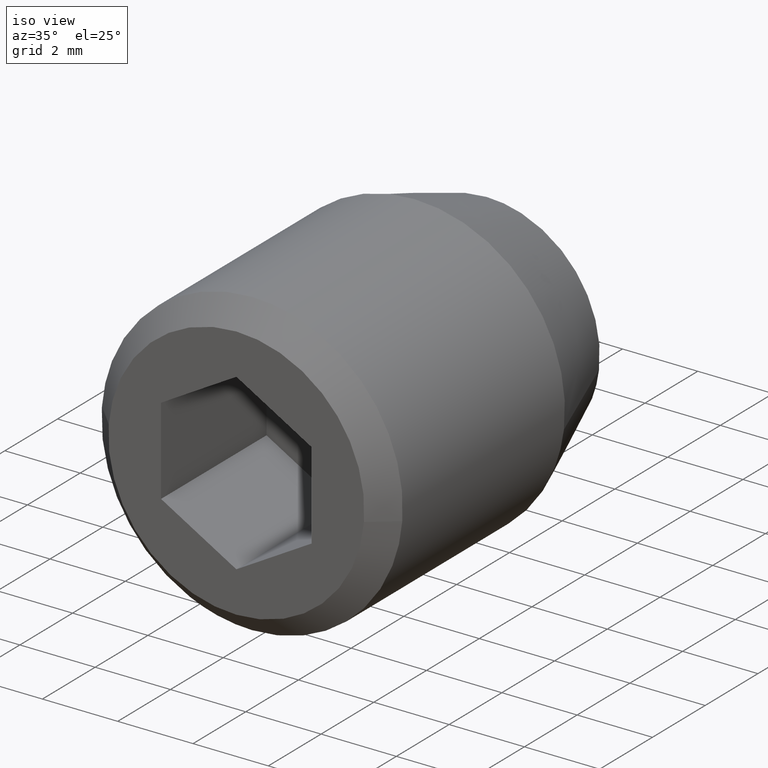
[diagram: clean part render]
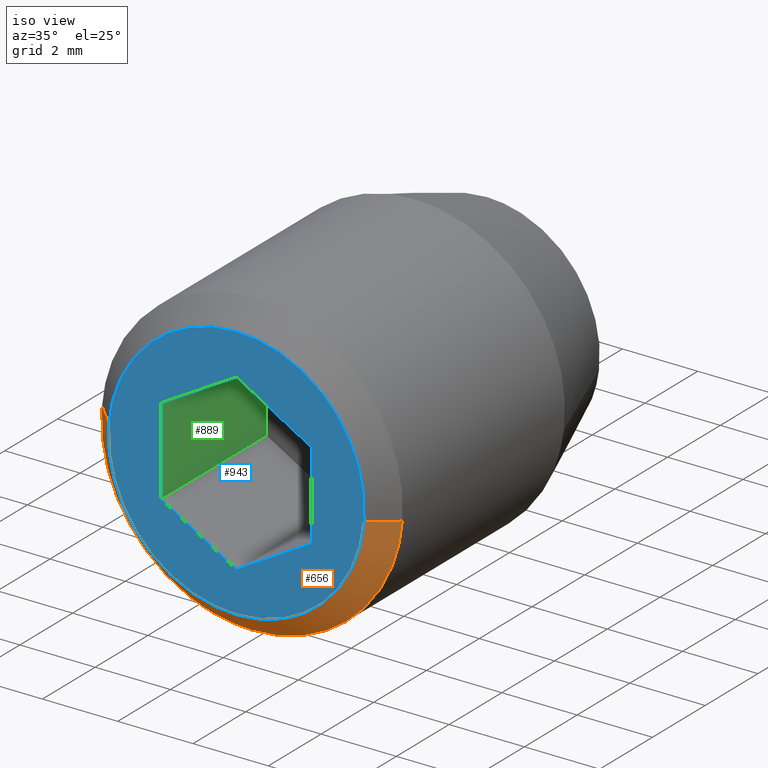
[diagram: same view with three faces highlighted in distinct colors, each labeled with its STEP entity id]
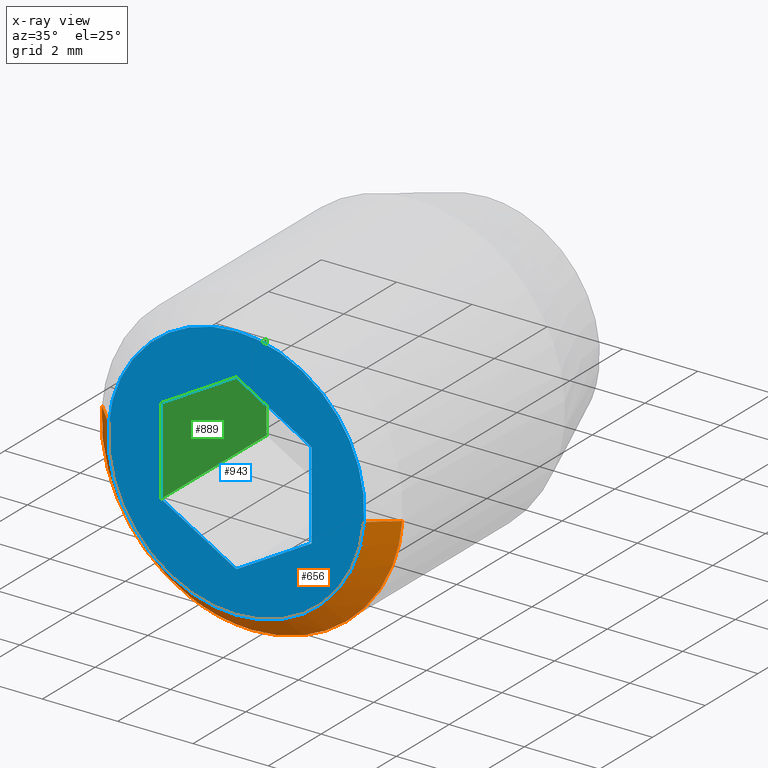
[diagram: x-ray of the same camera — body ghosted, the three highlighted faces saturated]
A machine part, iso view with three faces highlighted in distinct colors.
The next image is the same camera in x-ray (body ghosted, the three faces saturated) — at least one of them is partly hidden behind the body in this view.
Their STEP definitions:

[orange] entity #656 — the highlighted face is a freeform B-spline surface patch.
#256=CARTESIAN_POINT('',(-0.937293227097118,-8.899999999999999,-3.888634902692239));
#257=VERTEX_POINT('',#256);
#258=CARTESIAN_POINT('',(0.0,-8.900000000000000,-4.000000000000001));
#259=VERTEX_POINT('',#258);
#260=CARTESIAN_POINT('',(-0.937293227097118,-8.899999999999997,-3.888634902692239));
#261=CARTESIAN_POINT('',(-0.475262571361877,-8.900000000000000,-4.000000000000001));
#262=CARTESIAN_POINT('',(0.0,-8.900000000000000,-4.000000000000001));
#270=(BOUNDED_CURVE()B_SPLINE_CURVE(2,(#260,#261,#262),.UNSPECIFIED.,.F.,.U.)B_SPLINE_CURVE_WITH_KNOTS((3,3),(0.959962761347850,1.0),.UNSPECIFIED.)CURVE()GEOMETRIC_REPRESENTATION_ITEM()RATIONAL_B_SPLINE_CURVE((0.921210981979179,0.953093457195077,1.0))REPRESENTATION_ITEM(''));
#271=EDGE_CURVE('',#257,#259,#270,.T.);
#342=CARTESIAN_POINT('',(-3.992539213832878,-8.899999999999999,0.244193828764437));
#343=VERTEX_POINT('',#342);
#349=CARTESIAN_POINT('',(-3.987669081144080,-8.900000270182057,0.313836163995019));
#350=VERTEX_POINT('',#349);
#351=CARTESIAN_POINT('',(-3.987669081144081,-8.900000270182057,0.313836163995019));
#352=CARTESIAN_POINT('',(-3.990408181555453,-8.900000000000004,0.279035992859209));
#353=CARTESIAN_POINT('',(-3.992539213832878,-8.899999999999999,0.244193828764437));
#361=(BOUNDED_CURVE()B_SPLINE_CURVE(2,(#351,#352,#353),.UNSPECIFIED.,.F.,.U.)B_SPLINE_CURVE_WITH_KNOTS((3,3),(0.736331317632034,0.739332990711369),.UNSPECIFIED.)CURVE()GEOMETRIC_REPRESENTATION_ITEM()RATIONAL_B_SPLINE_CURVE((0.969723391647992,0.972855523488422,0.976072102688554))REPRESENTATION_ITEM(''));
#362=EDGE_CURVE('',#350,#343,#361,.T.);
#379=CARTESIAN_POINT('',(3.987669081144081,-8.900000270182055,-0.313836163995021));
#380=VERTEX_POINT('',#379);
#396=CARTESIAN_POINT('',(0.0,-8.900000000000000,-4.000000000000001));
#397=CARTESIAN_POINT('',(3.697562334434470,-8.900000000000000,-4.000000000000001));
#398=CARTESIAN_POINT('',(3.987669081144081,-8.900000270182055,-0.313836163995021));
#406=(BOUNDED_CURVE()B_SPLINE_CURVE(2,(#396,#397,#398),.UNSPECIFIED.,.F.,.U.)B_SPLINE_CURVE_WITH_KNOTS((3,3),(0.0,0.236331317632034),.UNSPECIFIED.)CURVE()GEOMETRIC_REPRESENTATION_ITEM()RATIONAL_B_SPLINE_CURVE((1.0,0.723120638689316,0.969723391647992))REPRESENTATION_ITEM(''));
#407=EDGE_CURVE('',#259,#380,#406,.T.);
#426=CARTESIAN_POINT('',(-3.992539213832878,-8.899999999999999,0.244193828764437));
#427=CARTESIAN_POINT('',(-4.0,-8.900000000000000,0.122210722895832));
#428=CARTESIAN_POINT('',(-4.0,-8.900000000000000,-6.735335E-016));
#429=CARTESIAN_POINT('',(-4.0,-8.900000000000000,-3.150418436847609));
#430=CARTESIAN_POINT('',(-0.937293227097118,-8.899999999999997,-3.888634902692239));
#438=(BOUNDED_CURVE()B_SPLINE_CURVE(2,(#426,#427,#428,#429,#430),.UNSPECIFIED.,.F.,.U.)B_SPLINE_CURVE_WITH_KNOTS((3,2,3),(0.739332990711369,0.750000000000000,0.959962761347850),.UNSPECIFIED.)CURVE()GEOMETRIC_REPRESENTATION_ITEM()RATIONAL_B_SPLINE_CURVE((0.976072102688554,0.987502821257359,1.0,0.754013323991470,0.921210981979179))REPRESENTATION_ITEM(''));
#439=EDGE_CURVE('',#343,#257,#438,.T.);
#588=CARTESIAN_POINT('',(3.374565174686613,-9.515000000000002,-0.265584039038756));
#589=CARTESIAN_POINT('',(3.108981135647858,-9.515000000000002,-3.640149213725368));
#590=CARTESIAN_POINT('',(-0.265584039038755,-9.515000000000002,-3.374565174686614));
#591=CARTESIAN_POINT('',(-3.640149213725368,-9.515000000000002,-3.108981135647858));
#592=CARTESIAN_POINT('',(-3.374565174686613,-9.515000000000002,0.265584039038755));
#593=CARTESIAN_POINT('',(4.002996938938661,-8.884624999999998,-0.315042691508199));
#594=CARTESIAN_POINT('',(3.687954247430463,-8.884624999999998,-4.318039630446859));
#595=CARTESIAN_POINT('',(-0.315042691508198,-8.884624999999998,-4.002996938938662));
#596=CARTESIAN_POINT('',(-4.318039630446859,-8.884624999999998,-3.687954247430463));
#597=CARTESIAN_POINT('',(-4.002996938938661,-8.884624999999998,0.315042691508197));
#605=(BOUNDED_SURFACE()B_SPLINE_SURFACE(2,1,((#588,#593),(#589,#594),(#590,#595),(#591,#596),(#592,#597)),.UNSPECIFIED.,.F.,.F.,.U.)B_SPLINE_SURFACE_WITH_KNOTS((3,2,3),(2,2),(0.0,6.652891132055469,13.305782264110940),(0.0,1.0),.UNSPECIFIED.)GEOMETRIC_REPRESENTATION_ITEM()RATIONAL_B_SPLINE_SURFACE(((1.0,1.0),(0.707106781186548,0.707106781186548),(1.0,1.0),(0.707106781186548,0.707106781186548),(1.0,1.0)))REPRESENTATION_ITEM('')SURFACE());
#606=CARTESIAN_POINT('',(0.0,-9.500000000000000,-3.400000000000001));
#607=VERTEX_POINT('',#606);
#608=CARTESIAN_POINT('',(3.389518593806453,-9.500000363099781,-0.266760628957499));
#609=VERTEX_POINT('',#608);
#610=CARTESIAN_POINT('',(0.0,-9.500000000000000,-3.400000000000001));
#611=CARTESIAN_POINT('',(3.142928170233559,-9.500000000000000,-3.400000000000003));
#612=CARTESIAN_POINT('',(3.389518593806453,-9.500000363099781,-0.266760628957499));
#620=(BOUNDED_CURVE()B_SPLINE_CURVE(2,(#610,#611,#612),.UNSPECIFIED.,.F.,.U.)B_SPLINE_CURVE_WITH_KNOTS((3,3),(0.0,0.236331327743802),.UNSPECIFIED.)CURVE()GEOMETRIC_REPRESENTATION_ITEM()RATIONAL_B_SPLINE_CURVE((1.0,0.723120626842644,0.969723412750484))REPRESENTATION_ITEM(''));
#621=EDGE_CURVE('',#607,#609,#620,.T.);
#622=ORIENTED_EDGE('',*,*,#621,.F.);
#623=CARTESIAN_POINT('',(-3.389518593806453,-9.500000363099781,0.266760628957498));
#624=VERTEX_POINT('',#623);
#625=CARTESIAN_POINT('',(-3.389518593806453,-9.500000363099781,0.266760628957498));
#626=CARTESIAN_POINT('',(-3.400000000000000,-9.500000000000000,0.133586094553548));
#627=CARTESIAN_POINT('',(-3.400000000000000,-9.500000000000000,-6.735335E-016));
#628=CARTESIAN_POINT('',(-3.400000000000001,-9.500000000000000,-3.400000000000002));
#629=CARTESIAN_POINT('',(0.0,-9.500000000000000,-3.400000000000001));
#637=(BOUNDED_CURVE()B_SPLINE_CURVE(2,(#625,#626,#627,#628,#629),.UNSPECIFIED.,.F.,.U.)B_SPLINE_CURVE_WITH_KNOTS((3,2,3),(0.736331327743802,0.750000000000000,1.0),.UNSPECIFIED.)CURVE()GEOMETRIC_REPRESENTATION_ITEM()RATIONAL_B_SPLINE_CURVE((0.969723412750484,0.983986154343904,1.0,0.707106781186548,1.0))REPRESENTATION_ITEM(''));
#638=EDGE_CURVE('',#624,#607,#637,.T.);
#639=ORIENTED_EDGE('',*,*,#638,.F.);
#640=CARTESIAN_POINT('',(-3.389518593806453,-9.500000363099781,0.266760628957498));
#641=CARTESIAN_POINT('',(-3.987669081144080,-8.900000270182057,0.313836163995019));
#642=QUASI_UNIFORM_CURVE('',1,(#640,#641),.UNSPECIFIED.,.F.,.U.);
#643=EDGE_CURVE('',#624,#350,#642,.T.);
#644=ORIENTED_EDGE('',*,*,#643,.T.);
#645=ORIENTED_EDGE('',*,*,#362,.T.);
#646=ORIENTED_EDGE('',*,*,#439,.T.);
#647=ORIENTED_EDGE('',*,*,#271,.T.);
#648=ORIENTED_EDGE('',*,*,#407,.T.);
#649=CARTESIAN_POINT('',(3.389518593806453,-9.500000363099781,-0.266760628957499));
#650=CARTESIAN_POINT('',(3.987669081144081,-8.900000270182055,-0.313836163995021));
#651=QUASI_UNIFORM_CURVE('',1,(#649,#650),.UNSPECIFIED.,.F.,.U.);
#652=EDGE_CURVE('',#609,#380,#651,.T.);
#653=ORIENTED_EDGE('',*,*,#652,.F.);
#654=EDGE_LOOP('',(#622,#639,#644,#645,#646,#647,#648,#653));
#655=FACE_OUTER_BOUND('',#654,.T.);
#656=ADVANCED_FACE('',(#655),#605,.T.);

[blue] entity #943 — the highlighted face is a freeform B-spline surface patch.
#606=CARTESIAN_POINT('',(0.0,-9.500000000000000,-3.400000000000001));
#607=VERTEX_POINT('',#606);
#608=CARTESIAN_POINT('',(3.389518593806453,-9.500000363099781,-0.266760628957499));
#609=VERTEX_POINT('',#608);
#610=CARTESIAN_POINT('',(0.0,-9.500000000000000,-3.400000000000001));
#611=CARTESIAN_POINT('',(3.142928170233559,-9.500000000000000,-3.400000000000003));
#612=CARTESIAN_POINT('',(3.389518593806453,-9.500000363099781,-0.266760628957499));
#620=(BOUNDED_CURVE()B_SPLINE_CURVE(2,(#610,#611,#612),.UNSPECIFIED.,.F.,.U.)B_SPLINE_CURVE_WITH_KNOTS((3,3),(0.0,0.236331327743802),.UNSPECIFIED.)CURVE()GEOMETRIC_REPRESENTATION_ITEM()RATIONAL_B_SPLINE_CURVE((1.0,0.723120626842644,0.969723412750484))REPRESENTATION_ITEM(''));
#621=EDGE_CURVE('',#607,#609,#620,.T.);
#623=CARTESIAN_POINT('',(-3.389518593806453,-9.500000363099781,0.266760628957498));
#624=VERTEX_POINT('',#623);
#625=CARTESIAN_POINT('',(-3.389518593806453,-9.500000363099781,0.266760628957498));
#626=CARTESIAN_POINT('',(-3.400000000000000,-9.500000000000000,0.133586094553548));
#627=CARTESIAN_POINT('',(-3.400000000000000,-9.500000000000000,-6.735335E-016));
#628=CARTESIAN_POINT('',(-3.400000000000001,-9.500000000000000,-3.400000000000002));
#629=CARTESIAN_POINT('',(0.0,-9.500000000000000,-3.400000000000001));
#637=(BOUNDED_CURVE()B_SPLINE_CURVE(2,(#625,#626,#627,#628,#629),.UNSPECIFIED.,.F.,.U.)B_SPLINE_CURVE_WITH_KNOTS((3,2,3),(0.736331327743802,0.750000000000000,1.0),.UNSPECIFIED.)CURVE()GEOMETRIC_REPRESENTATION_ITEM()RATIONAL_B_SPLINE_CURVE((0.969723412750484,0.983986154343904,1.0,0.707106781186548,1.0))REPRESENTATION_ITEM(''));
#638=EDGE_CURVE('',#624,#607,#637,.T.);
#675=CARTESIAN_POINT('',(0.0,-9.500000000000000,3.399999999999999));
#676=VERTEX_POINT('',#675);
#677=CARTESIAN_POINT('',(3.389518593806453,-9.500000363099781,-0.266760628957499));
#678=CARTESIAN_POINT('',(3.400000000000000,-9.499999999999998,-0.133586094553549));
#679=CARTESIAN_POINT('',(3.400000000000000,-9.500000000000000,-6.735335E-016));
#680=CARTESIAN_POINT('',(3.400000000000001,-9.500000000000000,3.399999999999999));
#681=CARTESIAN_POINT('',(0.0,-9.500000000000000,3.399999999999999));
#689=(BOUNDED_CURVE()B_SPLINE_CURVE(2,(#677,#678,#679,#680,#681),.UNSPECIFIED.,.F.,.U.)B_SPLINE_CURVE_WITH_KNOTS((3,2,3),(0.236331327743802,0.250000000000000,0.500000000000000),.UNSPECIFIED.)CURVE()GEOMETRIC_REPRESENTATION_ITEM()RATIONAL_B_SPLINE_CURVE((0.969723412750484,0.983986154343904,1.0,0.707106781186548,1.0))REPRESENTATION_ITEM(''));
#690=EDGE_CURVE('',#609,#676,#689,.T.);
#696=CARTESIAN_POINT('',(0.0,-9.500000000000000,3.399999999999999));
#697=CARTESIAN_POINT('',(-3.142928170233557,-9.499999999999998,3.399999999999999));
#698=CARTESIAN_POINT('',(-3.389518593806453,-9.500000363099781,0.266760628957498));
#706=(BOUNDED_CURVE()B_SPLINE_CURVE(2,(#696,#697,#698),.UNSPECIFIED.,.F.,.U.)B_SPLINE_CURVE_WITH_KNOTS((3,3),(0.500000000000000,0.736331327743802),.UNSPECIFIED.)CURVE()GEOMETRIC_REPRESENTATION_ITEM()RATIONAL_B_SPLINE_CURVE((1.0,0.723120626842644,0.969723412750484))REPRESENTATION_ITEM(''));
#707=EDGE_CURVE('',#676,#624,#706,.T.);
#779=CARTESIAN_POINT('',(2.0,-9.500000000000000,1.154701000000000));
#780=VERTEX_POINT('',#779);
#781=CARTESIAN_POINT('',(0.0,-9.500000000000000,2.309401000000000));
#782=VERTEX_POINT('',#781);
#783=CARTESIAN_POINT('',(2.0,-9.500000000000000,1.154701000000000));
#784=CARTESIAN_POINT('',(0.0,-9.500000000000000,2.309401000000000));
#785=QUASI_UNIFORM_CURVE('',1,(#783,#784),.UNSPECIFIED.,.F.,.U.);
#786=EDGE_CURVE('',#780,#782,#785,.T.);
#807=CARTESIAN_POINT('',(2.0,-9.500000000000000,-1.154701000000000));
#808=VERTEX_POINT('',#807);
#809=CARTESIAN_POINT('',(2.0,-9.500000000000000,-1.154701000000000));
#810=CARTESIAN_POINT('',(2.0,-9.500000000000000,1.154701000000000));
#811=QUASI_UNIFORM_CURVE('',1,(#809,#810),.UNSPECIFIED.,.F.,.U.);
#812=EDGE_CURVE('',#808,#780,#811,.T.);
#829=CARTESIAN_POINT('',(0.0,-9.500000000000000,-2.309401000000000));
#830=VERTEX_POINT('',#829);
#831=CARTESIAN_POINT('',(0.0,-9.500000000000000,-2.309401000000000));
#832=CARTESIAN_POINT('',(2.0,-9.500000000000000,-1.154701000000000));
#833=QUASI_UNIFORM_CURVE('',1,(#831,#832),.UNSPECIFIED.,.F.,.U.);
#834=EDGE_CURVE('',#830,#808,#833,.T.);
#851=CARTESIAN_POINT('',(-2.0,-9.500000000000000,-1.154701000000000));
#852=VERTEX_POINT('',#851);
#853=CARTESIAN_POINT('',(-2.0,-9.500000000000000,-1.154701000000000));
#854=CARTESIAN_POINT('',(0.0,-9.500000000000000,-2.309401000000000));
#855=QUASI_UNIFORM_CURVE('',1,(#853,#854),.UNSPECIFIED.,.F.,.U.);
#856=EDGE_CURVE('',#852,#830,#855,.T.);
#873=CARTESIAN_POINT('',(-2.0,-9.500000000000000,1.154701000000000));
#874=VERTEX_POINT('',#873);
#875=CARTESIAN_POINT('',(-2.0,-9.500000000000000,1.154701000000000));
#876=CARTESIAN_POINT('',(-2.0,-9.500000000000000,-1.154701000000000));
#877=QUASI_UNIFORM_CURVE('',1,(#875,#876),.UNSPECIFIED.,.F.,.U.);
#878=EDGE_CURVE('',#874,#852,#877,.T.);
#895=CARTESIAN_POINT('',(0.0,-9.500000000000000,2.309401000000000));
#896=CARTESIAN_POINT('',(-2.0,-9.500000000000000,1.154701000000000));
#897=QUASI_UNIFORM_CURVE('',1,(#895,#896),.UNSPECIFIED.,.F.,.U.);
#898=EDGE_CURVE('',#782,#874,#897,.T.);
#924=CARTESIAN_POINT('',(-3.738622159271297,-9.500000000000000,-3.739660114487351));
#925=CARTESIAN_POINT('',(-3.738622159271297,-9.500000000000000,3.739660175284087));
#926=CARTESIAN_POINT('',(3.738622341661510,-9.500000000000000,-3.739660114487351));
#927=CARTESIAN_POINT('',(3.738622341661510,-9.500000000000000,3.739660175284087));
#928=B_SPLINE_SURFACE_WITH_KNOTS('',1,1,((#924,#926),(#925,#927)),.UNSPECIFIED.,.F.,.F.,.U.,(2,2),(2,2),(0.0,7.479320289771438),(0.0,7.477244500932807),.UNSPECIFIED.);
#929=ORIENTED_EDGE('',*,*,#621,.T.);
#930=ORIENTED_EDGE('',*,*,#690,.T.);
#931=ORIENTED_EDGE('',*,*,#707,.T.);
#932=ORIENTED_EDGE('',*,*,#638,.T.);
#933=EDGE_LOOP('',(#929,#930,#931,#932));
#934=FACE_OUTER_BOUND('',#933,.T.);
#935=ORIENTED_EDGE('',*,*,#878,.F.);
#936=ORIENTED_EDGE('',*,*,#898,.F.);
#937=ORIENTED_EDGE('',*,*,#786,.F.);
#938=ORIENTED_EDGE('',*,*,#812,.F.);
#939=ORIENTED_EDGE('',*,*,#834,.F.);
#940=ORIENTED_EDGE('',*,*,#856,.F.);
#941=EDGE_LOOP('',(#935,#936,#937,#938,#939,#940));
#942=FACE_BOUND('',#941,.T.);
#943=ADVANCED_FACE('',(#934,#942),#928,.F.);

[green] entity #889 — the highlighted face is a freeform B-spline surface patch.
#731=CARTESIAN_POINT('',(-2.0,-5.500000000000000,1.154701000000000));
#732=VERTEX_POINT('',#731);
#738=CARTESIAN_POINT('',(-2.0,-5.500000000000000,-1.154701000000000));
#739=VERTEX_POINT('',#738);
#740=CARTESIAN_POINT('',(-2.0,-5.500000000000000,1.154701000000000));
#741=CARTESIAN_POINT('',(-2.0,-5.500000000000000,-1.154701000000000));
#742=QUASI_UNIFORM_CURVE('',1,(#740,#741),.UNSPECIFIED.,.F.,.U.);
#743=EDGE_CURVE('',#732,#739,#742,.T.);
#851=CARTESIAN_POINT('',(-2.0,-9.500000000000000,-1.154701000000000));
#852=VERTEX_POINT('',#851);
#860=CARTESIAN_POINT('',(-2.0,-5.500000000000000,-1.154701000000000));
#861=CARTESIAN_POINT('',(-2.0,-9.500000000000000,-1.154701000000000));
#862=QUASI_UNIFORM_CURVE('',1,(#860,#861),.UNSPECIFIED.,.F.,.U.);
#863=EDGE_CURVE('',#739,#852,#862,.T.);
#868=CARTESIAN_POINT('',(-2.0,-9.699799992247224,-1.270055625423931));
#869=CARTESIAN_POINT('',(-2.0,-9.699799992247224,1.270055687366920));
#870=CARTESIAN_POINT('',(-2.0,-5.300199900464415,-1.270055625423931));
#871=CARTESIAN_POINT('',(-2.0,-5.300199900464415,1.270055687366920));
#872=B_SPLINE_SURFACE_WITH_KNOTS('',1,1,((#868,#870),(#869,#871)),.UNSPECIFIED.,.F.,.F.,.U.,(2,2),(2,2),(0.0,2.540111312790851),(0.0,4.399600091782808),.UNSPECIFIED.);
#873=CARTESIAN_POINT('',(-2.0,-9.500000000000000,1.154701000000000));
#874=VERTEX_POINT('',#873);
#875=CARTESIAN_POINT('',(-2.0,-9.500000000000000,1.154701000000000));
#876=CARTESIAN_POINT('',(-2.0,-9.500000000000000,-1.154701000000000));
#877=QUASI_UNIFORM_CURVE('',1,(#875,#876),.UNSPECIFIED.,.F.,.U.);
#878=EDGE_CURVE('',#874,#852,#877,.T.);
#879=ORIENTED_EDGE('',*,*,#878,.T.);
#880=ORIENTED_EDGE('',*,*,#863,.F.);
#881=ORIENTED_EDGE('',*,*,#743,.F.);
#882=CARTESIAN_POINT('',(-2.0,-5.500000000000000,1.154701000000000));
#883=CARTESIAN_POINT('',(-2.0,-9.500000000000000,1.154701000000000));
#884=QUASI_UNIFORM_CURVE('',1,(#882,#883),.UNSPECIFIED.,.F.,.U.);
#885=EDGE_CURVE('',#732,#874,#884,.T.);
#886=ORIENTED_EDGE('',*,*,#885,.T.);
#887=EDGE_LOOP('',(#879,#880,#881,#886));
#888=FACE_OUTER_BOUND('',#887,.T.);
#889=ADVANCED_FACE('',(#888),#872,.F.);